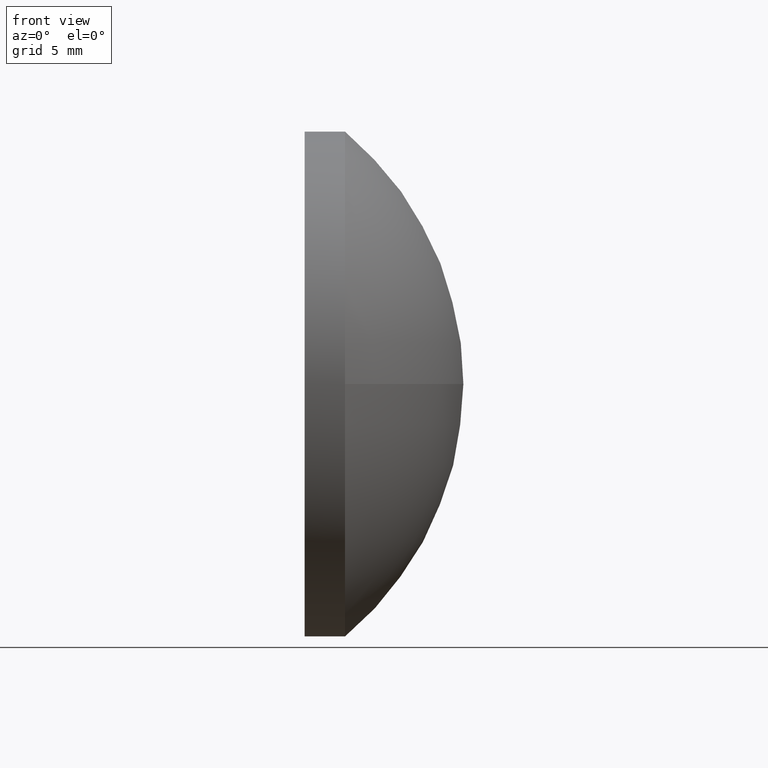
[diagram: clean part render]
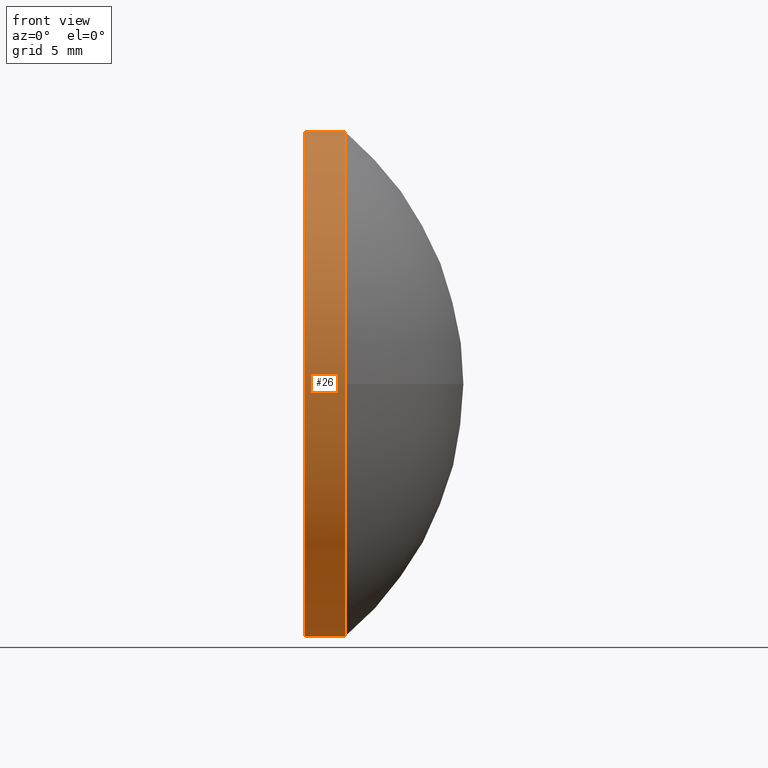
[diagram: same view with one face highlighted and labeled with its STEP entity id]
A machine part, front view. The second image highlights one B-rep face of the part: STEP entity #26.
In plain terms, the highlighted cylindrical surface (partial cylindrical patch) has radius 12.5 mm, axis along (-1, -0, -0).
Its self-contained STEP definition (entity closure, byte-faithful):
#4 = DIRECTION ( 'NONE',  ( -1.000000000000000000, -0.0000000000000000000, -0.0000000000000000000 ) ) ;
#10 = AXIS2_PLACEMENT_3D ( 'NONE', #14, #171, #121 ) ;
#14 = CARTESIAN_POINT ( 'NONE',  ( 404.5727201653537600, 15.90499227710017900, 0.0000000000000000000 ) ) ;
#16 = ORIENTED_EDGE ( 'NONE', *, *, #159, .F. ) ;
#17 = AXIS2_PLACEMENT_3D ( 'NONE', #75, #182, #90 ) ;
#25 = VERTEX_POINT ( 'NONE', #82 ) ;
#26 = ADVANCED_FACE ( 'NONE', ( #76 ), #120, .T. ) ;
#27 = CARTESIAN_POINT ( 'NONE',  ( 402.0677711457808500, 15.90499227710017900, 12.49999999999999600 ) ) ;
#29 = DIRECTION ( 'NONE',  ( -1.000000000000000000, -0.0000000000000000000, -0.0000000000000000000 ) ) ;
#31 = CARTESIAN_POINT ( 'NONE',  ( 402.0677711457808500, 15.90499227710017900, -12.49999999999999600 ) ) ;
#40 = CARTESIAN_POINT ( 'NONE',  ( 406.5727201653537600, 15.90499227710017900, -12.49999999999999600 ) ) ;
#41 = LINE ( 'NONE', #31, #72 ) ;
#42 = DIRECTION ( 'NONE',  ( -1.000000000000000000, -0.0000000000000000000, -0.0000000000000000000 ) ) ;
#43 = ORIENTED_EDGE ( 'NONE', *, *, #185, .T. ) ;
#46 = VERTEX_POINT ( 'NONE', #40 ) ;
#49 = VERTEX_POINT ( 'NONE', #155 ) ;
#51 = DIRECTION ( 'NONE',  ( 0.0000000000000000000, 0.0000000000000000000, 1.000000000000000000 ) ) ;
#59 = CARTESIAN_POINT ( 'NONE',  ( 402.0677711457808500, 15.90499227710017900, 0.0000000000000000000 ) ) ;
#64 = CIRCLE ( 'NONE', #10, 12.49999999999999600 ) ;
#72 = VECTOR ( 'NONE', #29, 1000.000000000000000 ) ;
#73 = EDGE_LOOP ( 'NONE', ( #16, #87, #43, #162, #140 ) ) ;
#75 = CARTESIAN_POINT ( 'NONE',  ( 406.5727201653537600, 15.90499227710017900, 0.0000000000000000000 ) ) ;
#76 = FACE_OUTER_BOUND ( 'NONE', #73, .T. ) ;
#82 = CARTESIAN_POINT ( 'NONE',  ( 406.5727201653537600, 15.90499227710017900, 12.49999999999999600 ) ) ;
#85 = EDGE_CURVE ( 'NONE', #25, #170, #186, .T. ) ;
#87 = ORIENTED_EDGE ( 'NONE', *, *, #117, .T. ) ;
#90 = DIRECTION ( 'NONE',  ( 0.0000000000000000000, 0.0000000000000000000, 1.000000000000000000 ) ) ;
#100 = CIRCLE ( 'NONE', #17, 12.49999999999999600 ) ;
#103 = VECTOR ( 'NONE', #4, 1000.000000000000000 ) ;
#117 = EDGE_CURVE ( 'NONE', #46, #49, #100, .T. ) ;
#120 = CYLINDRICAL_SURFACE ( 'NONE', #126, 12.49999999999999600 ) ;
#121 = DIRECTION ( 'NONE',  ( 0.0000000000000000000, 0.0000000000000000000, 1.000000000000000000 ) ) ;
#125 = CARTESIAN_POINT ( 'NONE',  ( 406.5727201653537600, 15.90499227710017900, 0.0000000000000000000 ) ) ;
#126 = AXIS2_PLACEMENT_3D ( 'NONE', #59, #42, #154 ) ;
#127 = VERTEX_POINT ( 'NONE', #156 ) ;
#140 = ORIENTED_EDGE ( 'NONE', *, *, #165, .F. ) ;
#149 = DIRECTION ( 'NONE',  ( -1.000000000000000000, -0.0000000000000000000, -0.0000000000000000000 ) ) ;
#150 = AXIS2_PLACEMENT_3D ( 'NONE', #125, #149, #51 ) ;
#154 = DIRECTION ( 'NONE',  ( 0.0000000000000000000, 0.0000000000000000000, 1.000000000000000000 ) ) ;
#155 = CARTESIAN_POINT ( 'NONE',  ( 406.5727201653537600, 3.404992277100186400, -1.530808498934190700E-015 ) ) ;
#156 = CARTESIAN_POINT ( 'NONE',  ( 404.5727201653537600, 15.90499227710017900, -12.49999999999999600 ) ) ;
#159 = EDGE_CURVE ( 'NONE', #46, #127, #41, .T. ) ;
#162 = ORIENTED_EDGE ( 'NONE', *, *, #85, .T. ) ;
#164 = CIRCLE ( 'NONE', #150, 12.49999999999999600 ) ;
#165 = EDGE_CURVE ( 'NONE', #127, #170, #64, .T. ) ;
#168 = CARTESIAN_POINT ( 'NONE',  ( 404.5727201653537600, 15.90499227710017900, 12.49999999999999600 ) ) ;
#170 = VERTEX_POINT ( 'NONE', #168 ) ;
#171 = DIRECTION ( 'NONE',  ( -1.000000000000000000, -0.0000000000000000000, -0.0000000000000000000 ) ) ;
#182 = DIRECTION ( 'NONE',  ( -1.000000000000000000, -0.0000000000000000000, -0.0000000000000000000 ) ) ;
#185 = EDGE_CURVE ( 'NONE', #49, #25, #164, .T. ) ;
#186 = LINE ( 'NONE', #27, #103 ) ;